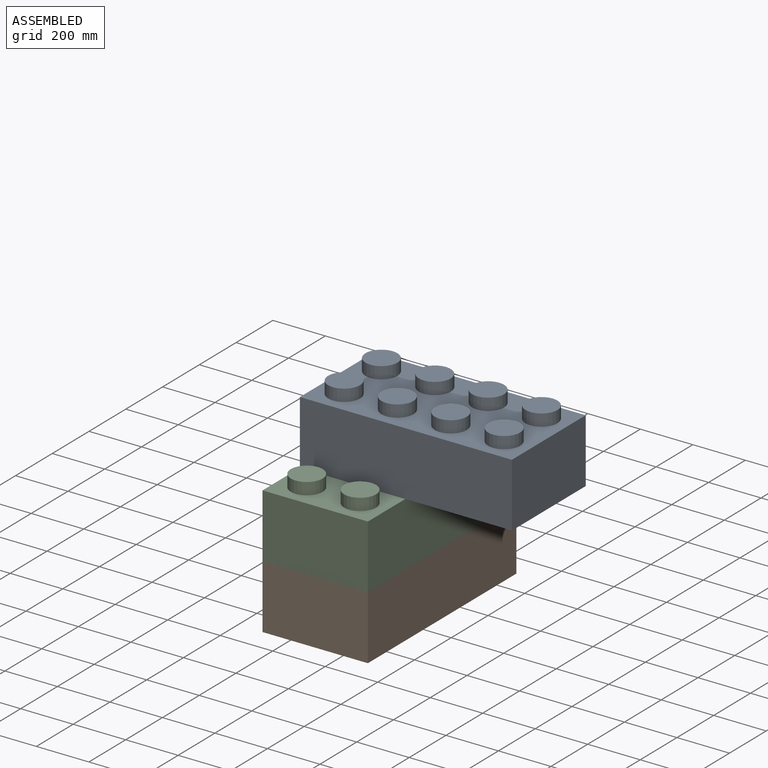
[diagram: assembled view]
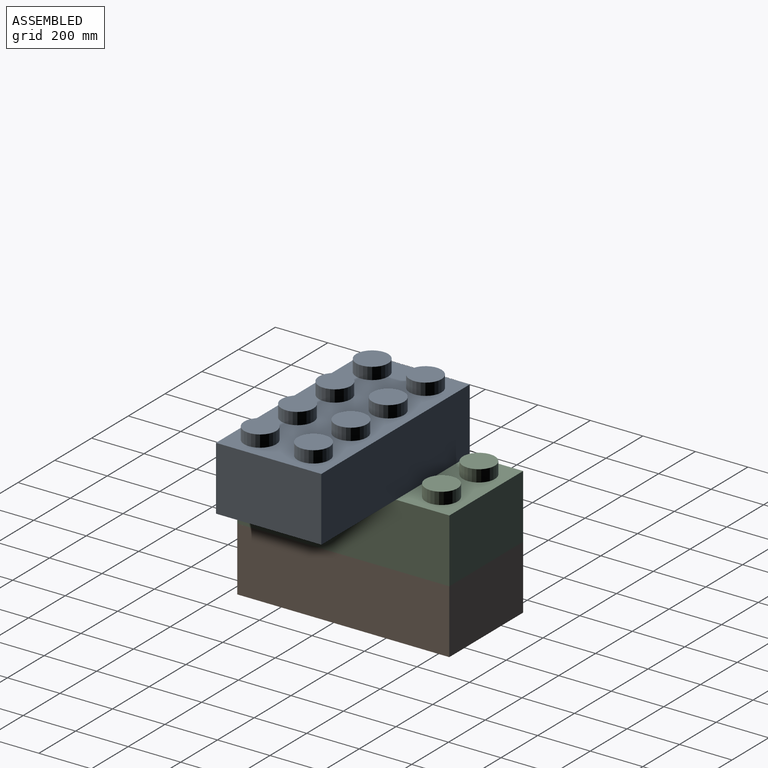
[diagram: assembled view, second angle]
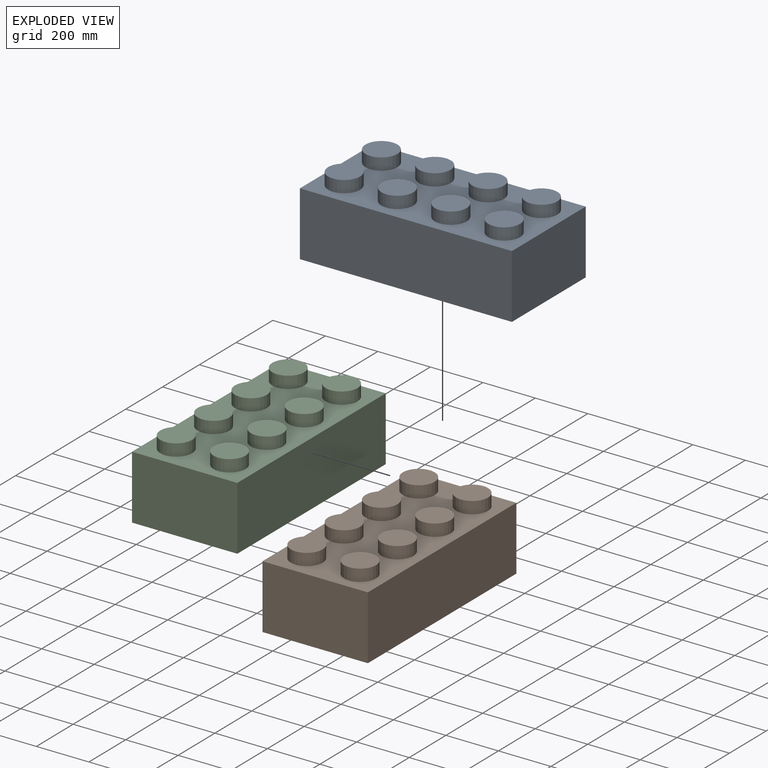
[diagram: exploded view]
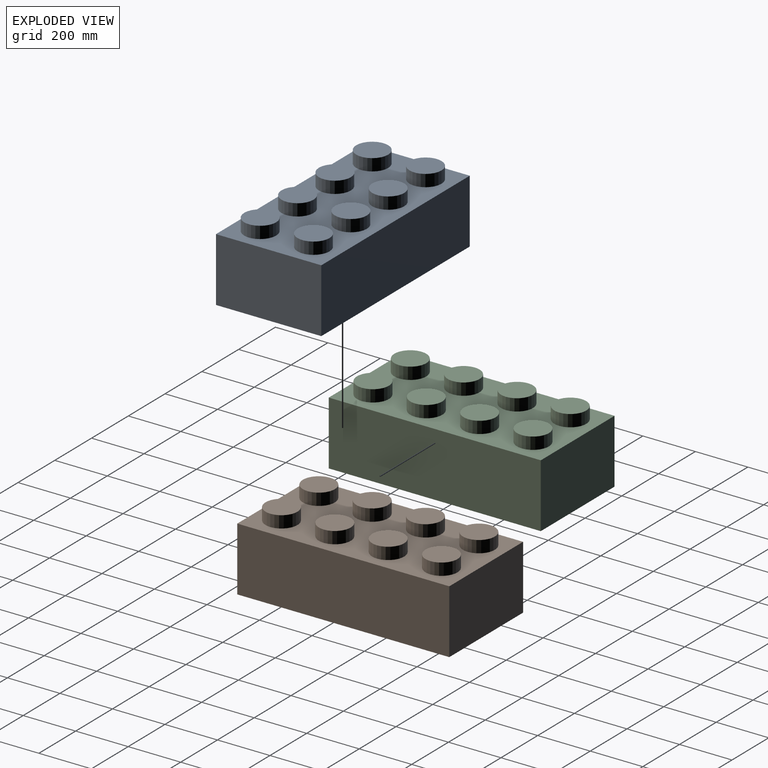
[diagram: exploded view, second angle]
ASSEMBLY  parts=3 mates=4
PART A: 39 faces, bbox 401.3x807.7x289.6 mm
  f0: plane 807.72x243.84mm, normal (-1,0,0), area 196954.4mm2, adj f1,f3,f4,f5
  f1: plane 401.32x243.84mm, normal (0,-1,0), area 97857.9mm2, adj f0,f2,f4,f5
  f2: plane 807.72x243.84mm, normal (1,0,0), area 196954.4mm2, adj f1,f3,f4,f5
  f3: plane 401.32x243.84mm, normal (0,1,0), area 97857.9mm2, adj f0,f2,f4,f5
  f4: plane 807.72x401.32mm, normal (0,0,1), area 230757.9mm2, adj f0,f1,f2,f3,f6,f8,f10,f12
  f5: plane 807.72x401.32mm, normal (0,0,-1), area 69987mm2, adj f0,f1,f2,f3,f22,f23,f24,f25
  f6: cylinder r=60.96mm len=121.92mm, axis (0,0,-1), area 17511.8mm2, adj f4,f7
  f7: plane 121.92x121.92mm, normal (0,0,1), area 11674.5mm2, adj f6
  f8: cylinder r=60.96mm len=121.92mm, axis (0,0,-1), area 17511.8mm2, adj f4,f9
  f9: plane 121.92x121.92mm, normal (0,0,1), area 11674.5mm2, adj f8
  f10: cylinder r=60.96mm len=121.92mm, axis (0,0,-1), area 17511.8mm2, adj f4,f11
  f11: plane 121.92x121.92mm, normal (0,0,1), area 11674.5mm2, adj f10
  f12: cylinder r=60.96mm len=121.92mm, axis (0,0,-1), area 17511.8mm2, adj f4,f13
  f13: plane 121.92x121.92mm, normal (0,0,1), area 11674.5mm2, adj f12
  f14: cylinder r=60.96mm len=121.92mm, axis (0,0,-1), area 17511.8mm2, adj f4,f15
  f15: plane 121.92x121.92mm, normal (0,0,1), area 11674.5mm2, adj f14
  f16: cylinder r=60.96mm len=121.92mm, axis (0,0,-1), area 17511.8mm2, adj f4,f17
  f17: plane 121.92x121.92mm, normal (0,0,1), area 11674.5mm2, adj f16
  f18: cylinder r=60.96mm len=121.92mm, axis (0,0,-1), area 17511.8mm2, adj f4,f19
  f19: plane 121.92x121.92mm, normal (0,0,1), area 11674.5mm2, adj f18
  f20: cylinder r=60.96mm len=121.92mm, axis (0,0,-1), area 17511.8mm2, adj f4,f21
  f21: plane 121.92x121.92mm, normal (0,0,1), area 11674.5mm2, adj f20
  f22: plane 746.76x218.44mm, normal (1,0,0), area 163122.3mm2, adj f5,f23,f25,f26
  f23: plane 340.36x218.44mm, normal (0,-1,0), area 74348.2mm2, adj f5,f22,f24,f26
  f24: plane 746.76x218.44mm, normal (-1,0,0), area 163122.3mm2, adj f5,f23,f25,f26
  f25: plane 340.36x218.44mm, normal (0,1,0), area 74348.2mm2, adj f5,f22,f24,f26
  f26: plane 746.76x340.36mm, normal (0,0,-1), area 189942.1mm2, adj f22,f23,f24,f25,f27,f29,f31
  f27: cylinder r=82.55mm len=213.36mm, axis (0,0,1), area 110664.9mm2, adj f26,f28
  f28: plane 165.1x165.1mm, normal (0,0,-1), area 9733.9mm2, adj f27,f37
  f29: cylinder r=82.55mm len=213.36mm, axis (0,0,1), area 110664.9mm2, adj f26,f30
  f30: plane 165.1x165.1mm, normal (0,0,-1), area 9733.9mm2, adj f29,f35
  f31: cylinder r=82.55mm len=213.36mm, axis (0,0,1), area 110664.9mm2, adj f26,f32
  f32: plane 165.1x165.1mm, normal (0,0,-1), area 9733.9mm2, adj f31,f33
  f33: cylinder r=60.96mm len=203.2mm, axis (0,0,-1), area 77830.3mm2, adj f32,f34
  f34: plane 121.92x121.92mm, normal (0,0,-1), area 11674.5mm2, adj f33
  f35: cylinder r=60.96mm len=203.2mm, axis (0,0,-1), area 77830.3mm2, adj f30,f36
  f36: plane 121.92x121.92mm, normal (0,0,-1), area 11674.5mm2, adj f35
  f37: cylinder r=60.96mm len=203.2mm, axis (0,0,-1), area 77830.3mm2, adj f28,f38
  f38: plane 121.92x121.92mm, normal (0,0,-1), area 11674.5mm2, adj f37
PART B: same geometry as A
PART C: same geometry as A
PLACE A rot(axis=(0,0,-1),90deg) t=(-651.88,-103.65,547.43)mm
PLACE B t=(-512.41,-511.21,59.75)mm fixed
PLACE C t=(-512.41,-511.07,303.59)mm fixed
MATE planar C.f2 <-> B.f2  axis (1,0,0) through (-279.37,-136.02,425.51)mm
MATE planar A.f29 <-> C.f29  axis (0,0,-1) through (-276.83,-136.02,547.43)mm
MATE planar C.f29 <-> B.f29  axis (0,0,-1) through (-480.03,-136.02,303.59)mm
MATE planar A.f1 <-> C.f0  axis (-1,0,0) through (-680.69,-336.68,669.35)mm
